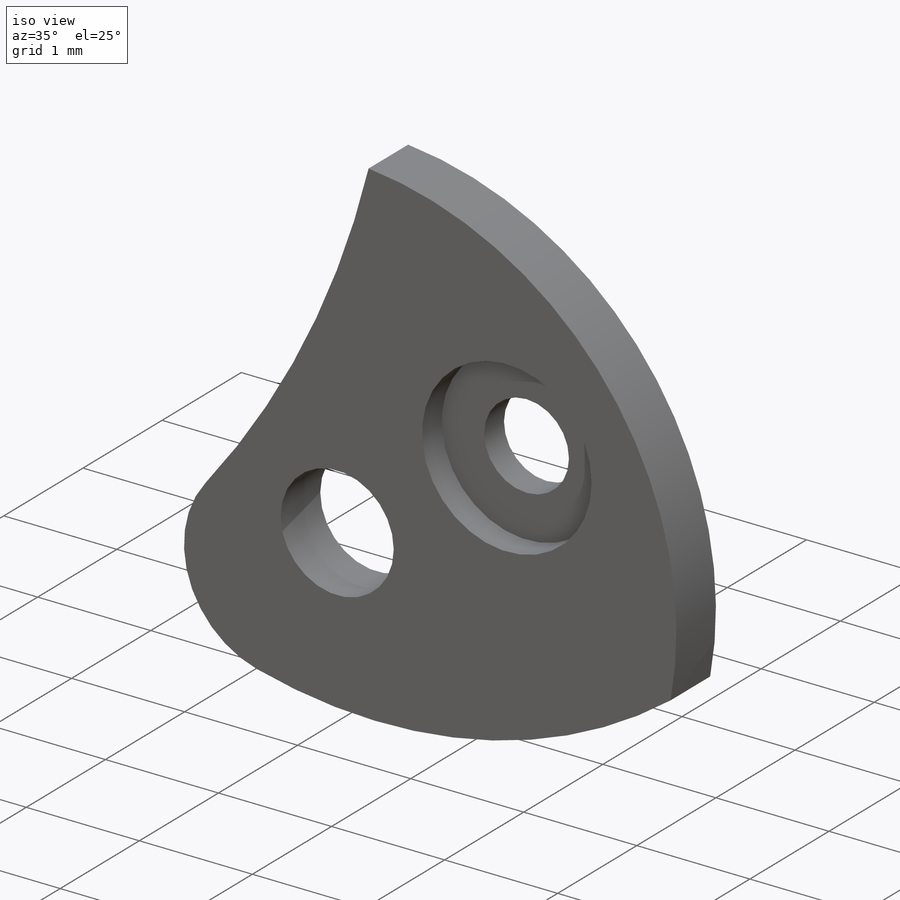
[diagram: iso view]
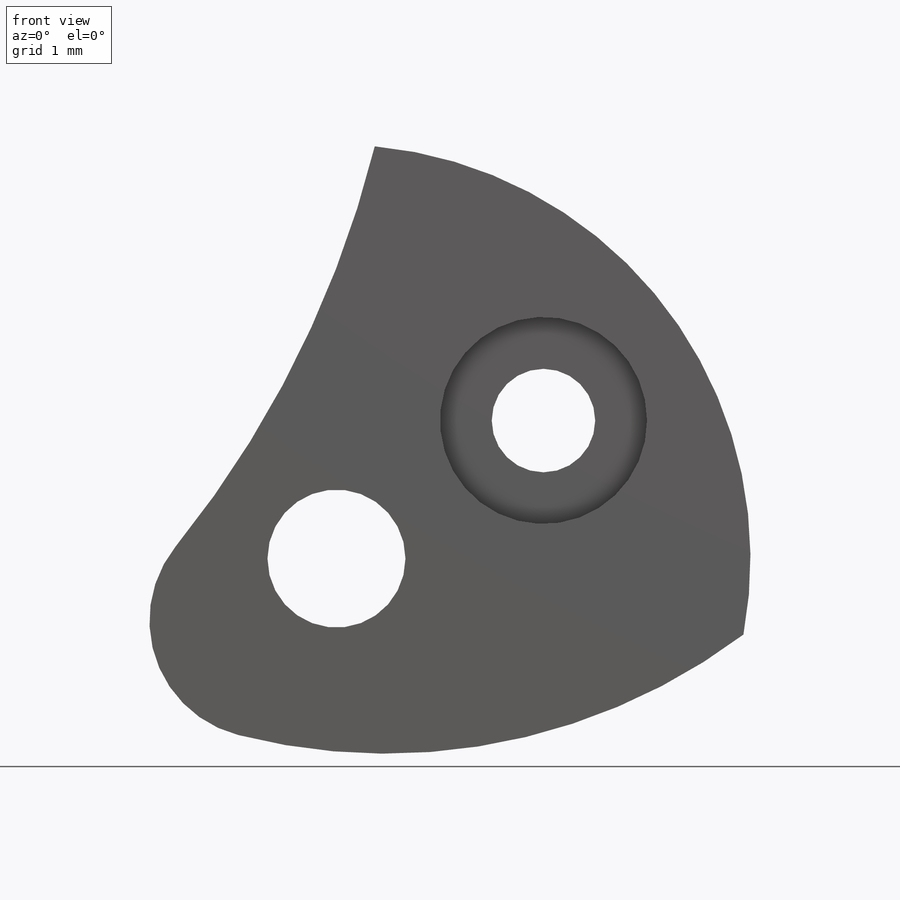
[diagram: front view]
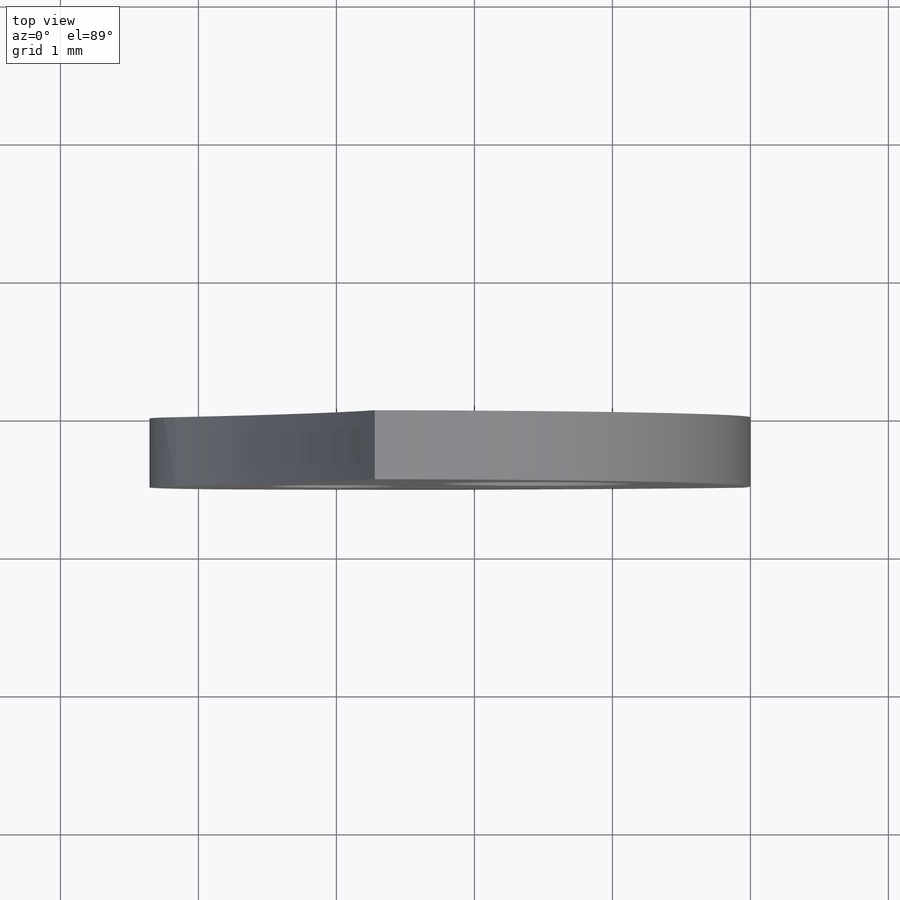
[diagram: top view]
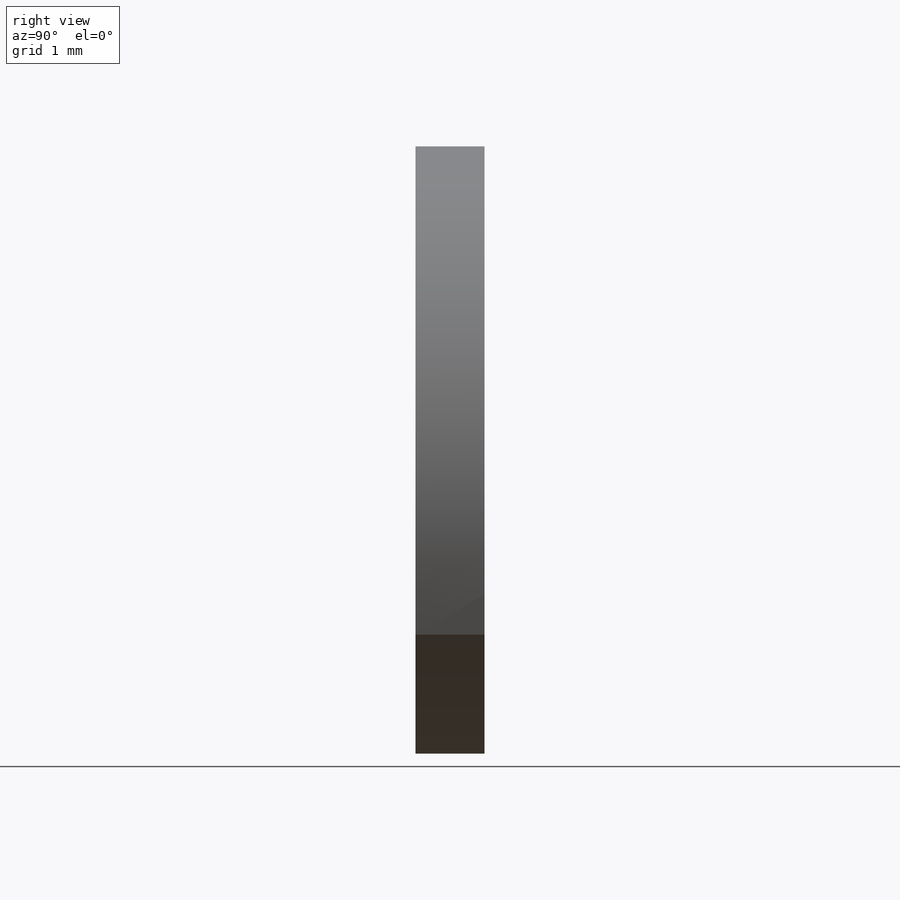
[diagram: right view]
SOLIDWORKS PART (.sldprt)
format: sldprt  version: not decoded by parser v0  size: 192,512 bytes
history: native  units: mm
features: sketch x4, plane x3, material x1, extrude x1, cut_extrude x1, hole x1, thread x1 (+8 scaffold rows collapsed)
feature tree (20):
  scaffold x8  (default folders/planes/origin — collapsed)
  material  "Material <sin especificar>"
  plane  "Alzado"
  plane  "Planta"
  plane  "Vista lateral"
  sketch  "Croquis1"  dims[D1=6.0mm]
  extrude  "Saliente-Extruir1"  Depth=0.5mm
  sketch  "Croquis2"  dims[D1=1.5mm D2=1.5mm D3=1.0mm]
  cut_extrude  "Cortar-Extruir1"  Depth=0.25mm
  hole  "Taladro roscado M1x0.251"  Depth=0.25mm  [1 undecoded]
  sketch  "Croquis4"  dims[D1=1.0mm]
  sketch  "Croquis3"  dims[hole-wizard template sketch: 61 standard entries collapsed; hole parameters above]
  thread  "Rosca de taladro1"  Diameter=1mm  [1 undecoded]
decode coverage: 8 of 8 modeling features carry decoded parameters
note: ~ marks probable driven/reference dimensions
note: 2 parameter values undecoded
note: suppression state not decoded; provenance and decode notes live in map.json
